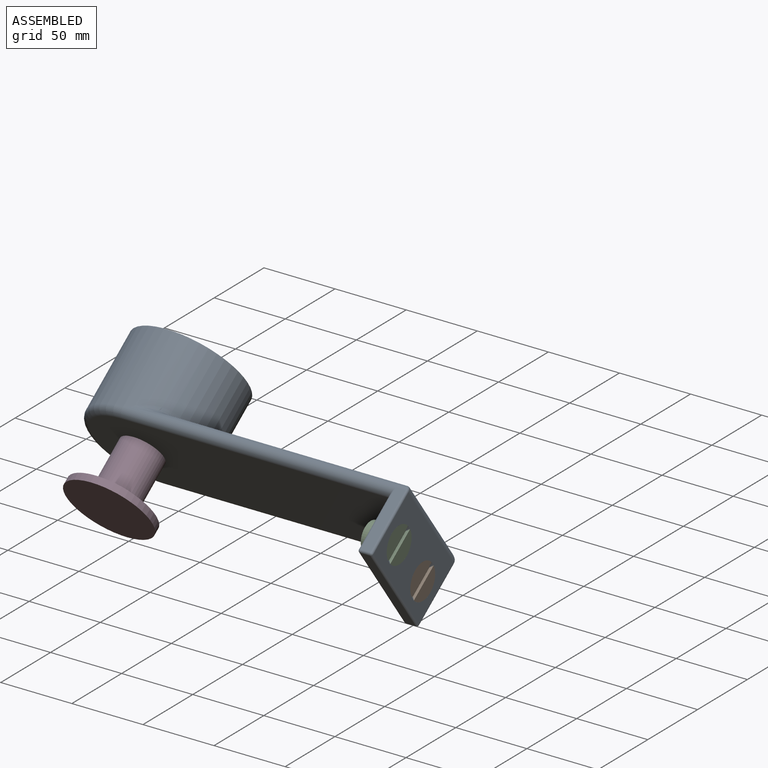
[diagram: assembled view]
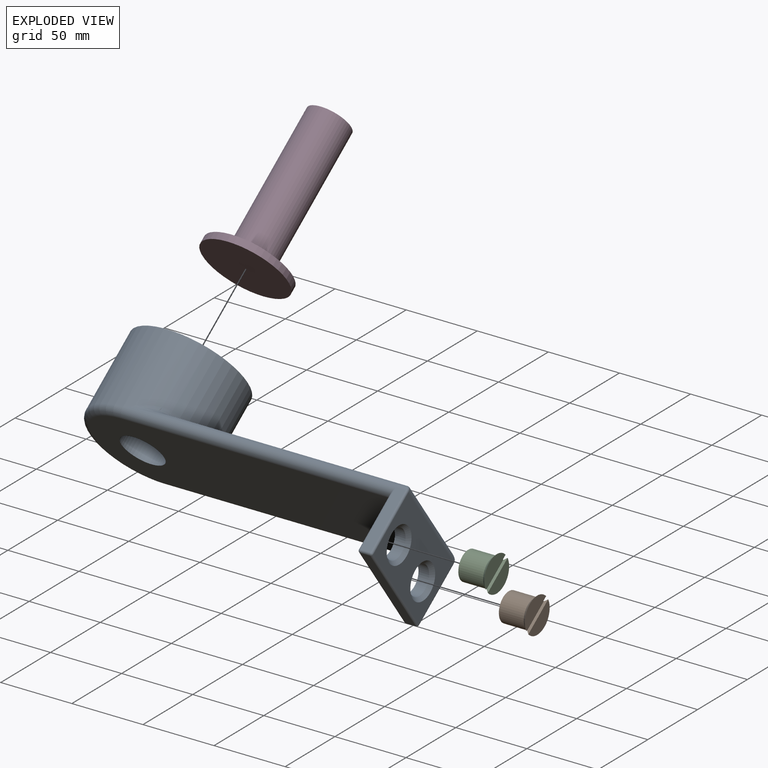
[diagram: exploded view]
GUIDED TOUR — MATED ASSEMBLY (Onshape document 11ccd8d0cca5151f88818e18, AutoMate assembly 11ccd8d0cca5151f88818e18_91a3a1b0d5d6f82dd541d160_cc35f12ad8874e34c858b3f8_default)

This assembly has 4 components, labeled P0..P3 below (a component is one placed occurrence of a part; the same part can appear more than once), held together by 3 mates. A mate is a constraint between two components; its type names the relative motion it leaves free:
  CYLINDRICAL — leaves both rotation about and translation along the listed axis free,
  FASTENED — locks the two components together rigidly (no relative motion).
Axis/direction vectors are unit vectors and 'through' points are millimeter coordinates, both in the assembly's world frame.

MATES
  1. CYLINDRICAL "Cylindrical 1": P3 <-> P0, axis (0.000, -0.805, -0.593) through (9.29, -28.96, -4.16) mm
  2. FASTENED "Fastened 1": P2 <-> P0, direction (1.000, 0.000, 0.000) through (209.29, -27.34, 21.88) mm
  3. FASTENED "Fastened 2": P1 <-> P0, direction (1.000, 0.000, 0.000) through (209.29, -3.61, -10.32) mm

ASSEMBLY ORDER
  1. P0 — the base component [order heuristic]
  2. P1 [order heuristic]
  3. P2 [order heuristic]
  4. P3 [order heuristic]
Order-tag legend:
  [order heuristic] — this assembly is geometrically interlocked (no collision-free removal order exists), so components are listed in mate-graph order; insertion feasibility is not verified.

Of the 4 components, 4 carry the full construction recipe — the FeatureScript program that regenerates the part's solid from scratch; the rest are supplied as boundary geometry only.
Each toured component is shown spotlighted twice — in the assembled view, then in the exploded view, where a leader line traces a displaced component back to its assembled socket (saturated green if recipe-attached, orange if geometry-only; every other component desaturated gray) — followed by its recipe or geometry summary and the mates that hold it.
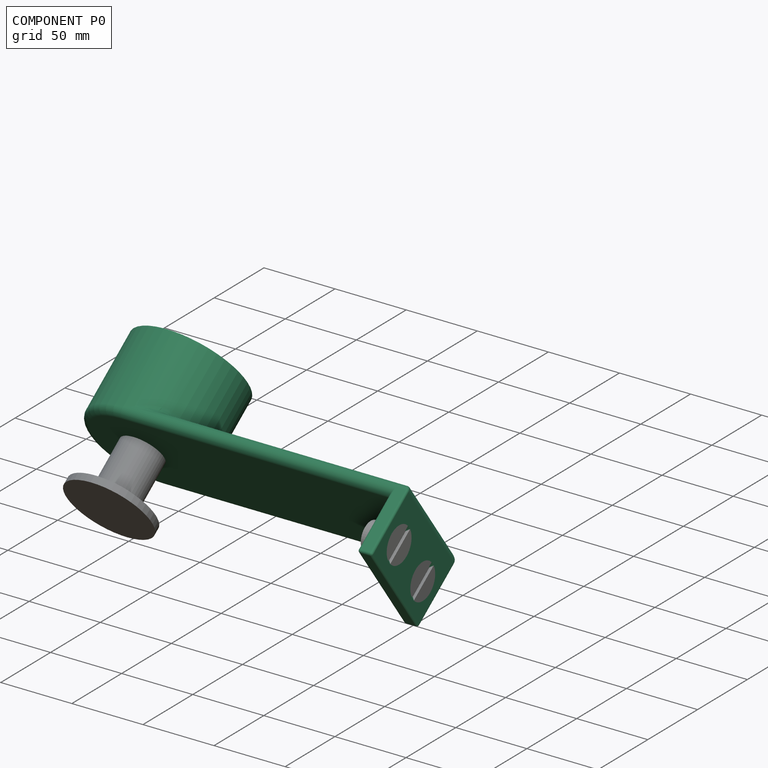
[diagram: component P0 — assembled]
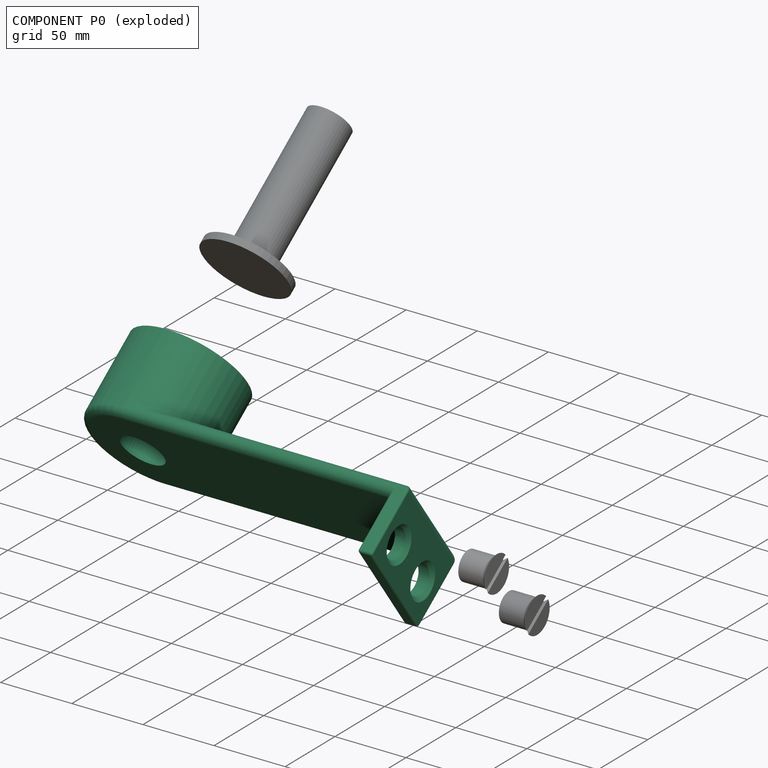
[diagram: component P0 — exploded]
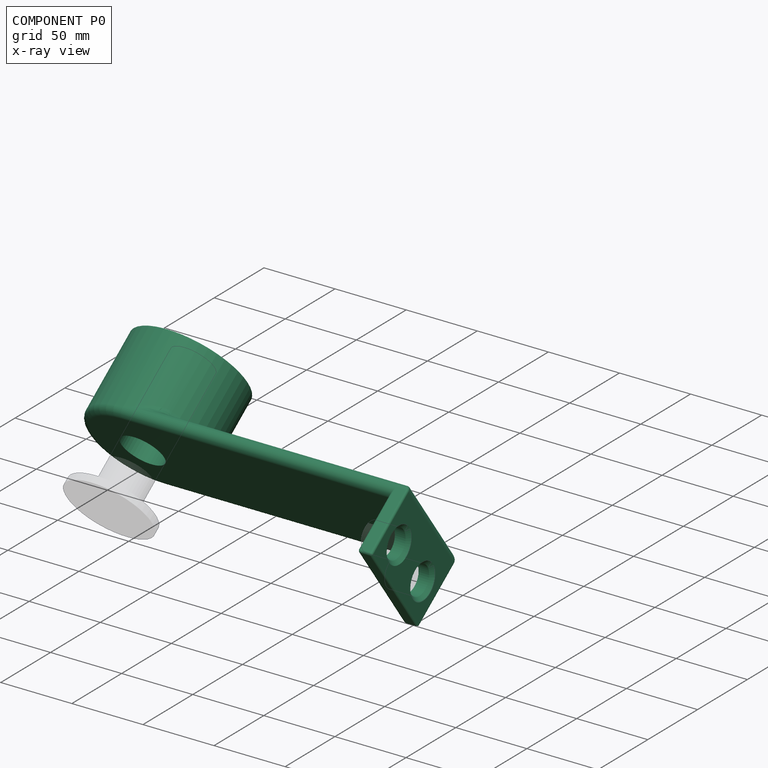
[diagram: component P0 — x-ray view]
COMPONENT P0 — recipe-attached (CADFS 00339227, mesh-verified: the recipe's output STEP matches this component's geometry to below the mesh-comparison resolution (tessellation chordal tolerance ~0.408 mm)).
Held by: CYLINDRICAL mate "Cylindrical 1" to P3; FASTENED mate "Fastened 1" to P2; FASTENED mate "Fastened 2" to P1.
Construction recipe (FeatureScript — the CAD program that rebuilds this solid; sketch coordinates are in the units given by the * unit suffixes, e.g. mm):

FeatureScript 1549;
import(path : "onshape/std/geometry.fs", version : "1549.0");
import(path : "onshape/std/common.fs", version : "1549.0");
const mm = millimeter;
const VERTEX = EntityType.VERTEX;
const EDGE = EntityType.EDGE;
const FACE = EntityType.FACE;
const BODY = EntityType.BODY;
function v(x, y){return vector(x, y);}
function OD(order){return orderDisambiguation(order);}
function OSD(set){return originalSetDisambiguation(set);}
function TD(topology){return topologyDisambiguation(topology);}
function TDD(query){return trueDependencyDisambiguation(query);}
function sQuery(a, b, c) {return sketchEntityQuery(a, b, c);}

annotation { "Feature Type Name" : "Feature", "Feature Type Description" : "" }
export const myFeature = defineFeature(function(context is Context, id is Id, definition is map)
    precondition{}
    {
        {
            var Q0;
            Q0=qCreatedBy(makeId("Top.planeOp"),FACE);
            var sketch = newSketch(context, id + "F0", { "sketchPlane" : qUnion([Q0])});
            skLineSegment(sketch, "E0.bottom", {"start": v(100, 40) * mm, "end": v(-100, 40) * mm});
            skLineSegment(sketch, "E0.top", {"start": v(100, -40) * mm, "end": v(-100, -40) * mm});
            skLineSegment(sketch, "E0.left", {"start": v(100, 40) * mm, "end": v(100, -40) * mm});
            skLineSegment(sketch, "E0.right", {"start": v(-100, 40) * mm, "end": v(-100, -40) * mm});
            skPoint(sketch, "E0.middle", {"position": v(0, 0) * mm});
            skCircle(sketch, "E1", {"center": v(-100, 0) * mm, "radius": 40 * mm});
            skCircle(sketch, "E2", {"center": v(-100, 0) * mm, "radius": 15 * mm});
            skSolve(sketch);
        }
        {
            var Q0;
            Q0=makeQuery(id+"F0.imprint","IMPRINT",FACE,{"disambiguationData":[TD([[makeQuery(id+"F0.imprint","IMPRINT",EDGE,{"derivedFrom":sQuery(id+"F0.wireOp",EDGE,"E0.bottom")}),1.0]])]});
            var Q1;
            {var subQ1=sQuery(id+"F0.wireOp",EDGE,"E0.right");var subQ3=sQuery(id+"F0.wireOp",EDGE,"E2");var subQ4=makeQuery(id+"F0.imprint","INTERSECT",VERTEX,{"disambiguationData":[OD(0.0)],"derivedFrom":[subQ1,subQ3]});Q1=makeQuery(id+"F0.imprint","IMPRINT",FACE,{"disambiguationData":[TD([[makeQuery(id+"F0.imprint","IMPRINT",EDGE,{"disambiguationData":[TD([[subQ4,1.0]])],"derivedFrom":subQ3}),-1.0]])]});}
            var Q2;
            {var subQ1=sQuery(id+"F0.wireOp",EDGE,"E0.right");var subQ3=sQuery(id+"F0.wireOp",EDGE,"E2");var subQ4=makeQuery(id+"F0.imprint","INTERSECT",VERTEX,{"disambiguationData":[OD(0.0)],"derivedFrom":[subQ1,subQ3]});Q2=makeQuery(id+"F0.imprint","IMPRINT",FACE,{"disambiguationData":[TD([[makeQuery(id+"F0.imprint","IMPRINT",EDGE,{"disambiguationData":[TD([[subQ4,-1.0]])],"derivedFrom":subQ3}),-1.0]])]});}
            extrude(context, id + "F1", {"entities" : qUnion([Q0, Q1, Q2]), "depth" : 10 * mm});
        }
        {
            var Q0;
            Q0=makeQuery(id+"F1.opExtrude","SWEPT_FACE",FACE,{"disambiguationData":[OSD([sQuery(id+"F0.wireOp",EDGE,"E0.left")])]});
            var sketch = newSketch(context, id + "F2", { "sketchPlane" : qUnion([Q0])});
            skLineSegment(sketch, "E3.bottom", {"start": v(-40, 10) * mm, "end": v(40, 10) * mm});
            skLineSegment(sketch, "E3.top", {"start": v(-40, -40) * mm, "end": v(40, -40) * mm});
            skLineSegment(sketch, "E3.left", {"start": v(-40, 10) * mm, "end": v(-40, -40) * mm});
            skLineSegment(sketch, "E3.right", {"start": v(40, 10) * mm, "end": v(40, -40) * mm});
            skCircle(sketch, "E4", {"center": v(-20, -20) * mm, "radius": 10 * mm});
            skCircle(sketch, "E5", {"center": v(20, -20) * mm, "radius": 10 * mm});
            skLineSegment(sketch, "E6", {"start": v(0, -40) * mm, "end": v(0, 10) * mm, "construction": true});
            skSolve(sketch);
        }
        {
            var Q0;
            Q0 = qSketchRegion(id + "F2", true);
            extrude(context, id + "F3", {"entities" : qUnion([Q0]), "operationType" : NewBodyOperationType.ADD, "oppositeDirection" : true, "depth" : 10 * mm});
        }
        {
            var Q0;
            {var subQ1=sQuery(id+"F0.wireOp",EDGE,"E0.right");var subQ3=sQuery(id+"F0.wireOp",EDGE,"E2");var subQ4=makeQuery(id+"F0.imprint","INTERSECT",VERTEX,{"disambiguationData":[OD(0.0)],"derivedFrom":[subQ1,subQ3]});Q0=makeQuery(id+"F0.imprint","IMPRINT",FACE,{"disambiguationData":[TD([[makeQuery(id+"F0.imprint","IMPRINT",EDGE,{"disambiguationData":[TD([[subQ4,1.0]])],"derivedFrom":subQ3}),-1.0]])]});}
            var Q1;
            {var subQ1=sQuery(id+"F0.wireOp",EDGE,"E0.right");var subQ3=sQuery(id+"F0.wireOp",EDGE,"E2");var subQ4=makeQuery(id+"F0.imprint","INTERSECT",VERTEX,{"disambiguationData":[OD(0.0)],"derivedFrom":[subQ1,subQ3]});Q1=makeQuery(id+"F0.imprint","IMPRINT",FACE,{"disambiguationData":[TD([[makeQuery(id+"F0.imprint","IMPRINT",EDGE,{"disambiguationData":[TD([[subQ4,-1.0]])],"derivedFrom":subQ3}),-1.0]])]});}
            extrude(context, id + "F4", {"entities" : qUnion([Q0, Q1]), "operationType" : NewBodyOperationType.ADD, "depth" : 60 * mm});
        }
        {
            var Q0;
            Q0=makeQuery(id+"F1.opExtrude","CAP_EDGE",EDGE,{"disambiguationData":[OSD([sQuery(id+"F0.wireOp",EDGE,"E0.left")])],"isStart":false});
            var Q1;
            {var subQ0=sQuery(id+"F0.wireOp",EDGE,"E1");Q1=makeQuery(id+"F4.boolean.opBoolean","INTERSECT",EDGE,{"derivedFrom":[makeQuery(id+"F1.opExtrude","CAP_FACE",FACE,{"disambiguationData":[OSD([sQuery(id+"F0.wireOp",EDGE,"E0.bottom"),sQuery(id+"F0.wireOp",EDGE,"E0.top"),sQuery(id+"F0.wireOp",EDGE,"E0.left"),subQ0,sQuery(id+"F0.wireOp",EDGE,"E2")])],"isStart":false}),makeQuery(id+"F4.opExtrude","SWEPT_FACE",FACE,{"disambiguationData":[OSD([subQ0])]})]});}
            var Q2;
            Q2=makeQuery(id+"F1.opExtrude","CAP_EDGE",EDGE,{"disambiguationData":[OSD([sQuery(id+"F0.wireOp",EDGE,"E0.top")])],"isStart":false});
            var Q3;
            Q3=makeQuery(id+"F1.opExtrude","CAP_EDGE",EDGE,{"disambiguationData":[OSD([sQuery(id+"F0.wireOp",EDGE,"E0.bottom")])],"isStart":false});
            var Q4;
            Q4=makeQuery(id+"F1.opExtrude","CAP_EDGE",EDGE,{"disambiguationData":[OSD([sQuery(id+"F0.wireOp",EDGE,"E0.top")])],"isStart":true});
            var Q5;
            Q5=makeQuery(id+"F1.opExtrude","CAP_EDGE",EDGE,{"disambiguationData":[OSD([sQuery(id+"F0.wireOp",EDGE,"E0.bottom")])],"isStart":true});
            fillet(context, id + "F5", {"entities" : qUnion([Q0, Q1, Q2, Q3, Q4, Q5]), "radius" : 5 * mm, "tangentPropagation" : true, "allowEdgeOverflow" : false});
        }
        {
            var Q0;
            Q0=makeQuery(id+"F3.boolean.opBoolean","MERGE",EDGE,{"derivedFrom":[makeQuery(id+"F1.opExtrude","SWEPT_EDGE",EDGE,{"disambiguationData":[OSD([sQuery(id+"F0.wireOp",EDGE,"E0.bottom"),sQuery(id+"F0.wireOp",EDGE,"E0.left")])]}),makeQuery(id+"F3.opExtrude","CAP_EDGE",EDGE,{"disambiguationData":[OSD([sQuery(id+"F2.wireOp",EDGE,"E3.right")])],"isStart":true})]});
            var Q1;
            Q1=makeQuery(id+"F3.opExtrude","CAP_EDGE",EDGE,{"disambiguationData":[OSD([sQuery(id+"F2.wireOp",EDGE,"E3.right")])],"isStart":false});
            var Q2;
            Q2=makeQuery(id+"F3.boolean.opBoolean","MERGE",EDGE,{"derivedFrom":[makeQuery(id+"F1.opExtrude","SWEPT_EDGE",EDGE,{"disambiguationData":[OSD([sQuery(id+"F0.wireOp",EDGE,"E0.top"),sQuery(id+"F0.wireOp",EDGE,"E0.left")])]}),makeQuery(id+"F3.opExtrude","CAP_EDGE",EDGE,{"disambiguationData":[OSD([sQuery(id+"F2.wireOp",EDGE,"E3.left")])],"isStart":true})]});
            var Q3;
            Q3=makeQuery(id+"F3.opExtrude","CAP_EDGE",EDGE,{"disambiguationData":[OSD([sQuery(id+"F2.wireOp",EDGE,"E3.left")])],"isStart":false});
            var Q4;
            Q4=makeQuery(id+"F3.opExtrude","CAP_EDGE",EDGE,{"disambiguationData":[OSD([sQuery(id+"F2.wireOp",EDGE,"E3.top")])],"isStart":false});
            var Q5;
            Q5=makeQuery(id+"F3.opExtrude","SWEPT_FACE",FACE,{"disambiguationData":[OSD([sQuery(id+"F2.wireOp",EDGE,"E3.top")])]});
            fillet(context, id + "F6", {"entities" : qUnion([Q0, Q1, Q2, Q3, Q4, Q5]), "radius" : 1.5 * mm, "tangentPropagation" : true, "allowEdgeOverflow" : false});
        }
        {
            var Q0;
            Q0=makeQuery(id+"F3.opExtrude","CAP_EDGE",EDGE,{"disambiguationData":[OSD([sQuery(id+"F2.wireOp",EDGE,"E4")])],"isStart":true});
            var Q1;
            Q1=makeQuery(id+"F3.opExtrude","CAP_EDGE",EDGE,{"disambiguationData":[OSD([sQuery(id+"F2.wireOp",EDGE,"E5")])],"isStart":true});
            chamfer(context, id + "F7", {"entities" : qUnion([Q0, Q1]), "chamferType" : ChamferType.OFFSET_ANGLE, "width" : 2.5 * mm, "oppositeDirection" : false, "angle" : 45 * degree, "tangentPropagation" : true});
        }
    });
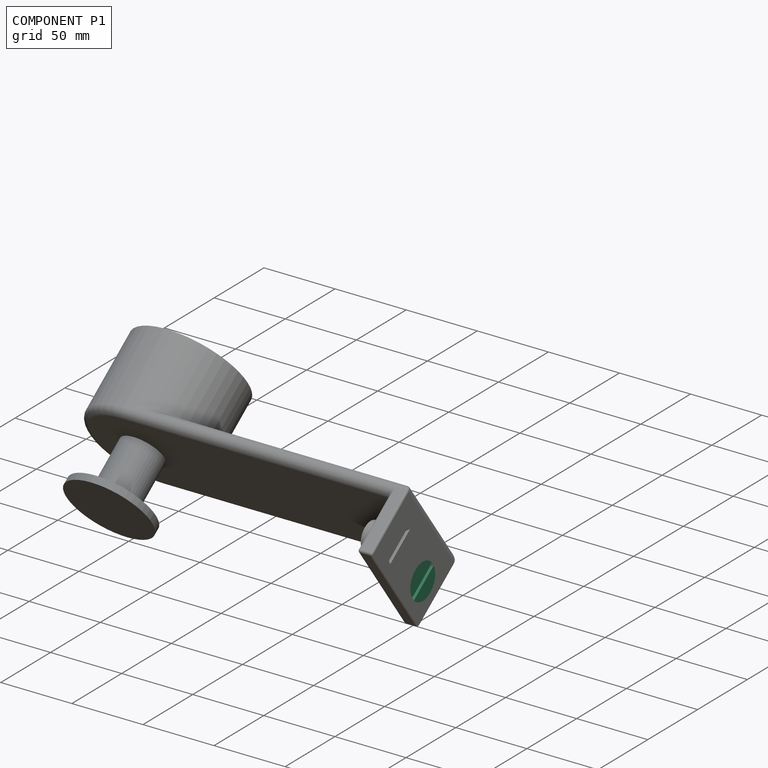
[diagram: component P1 — assembled]
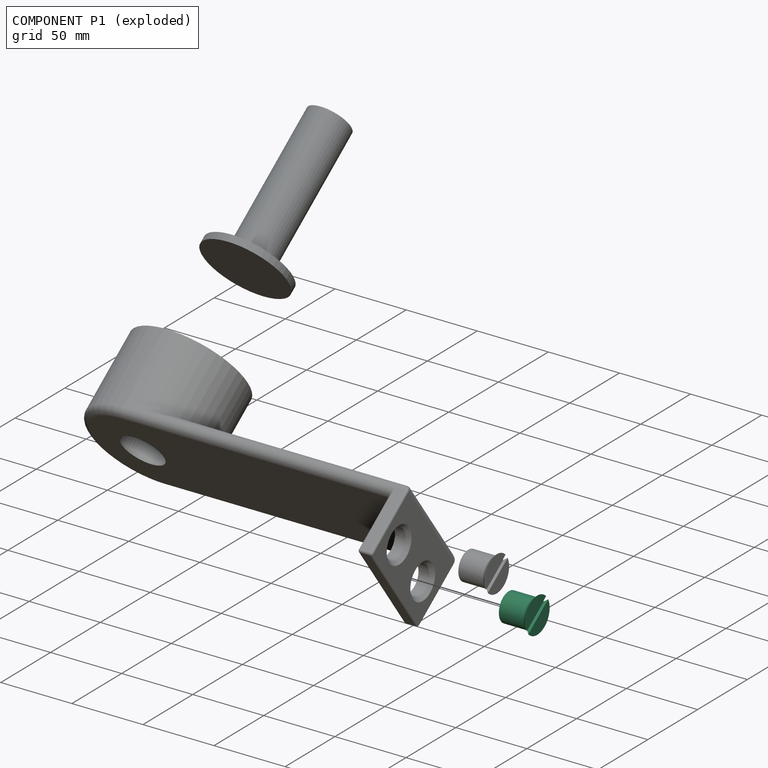
[diagram: component P1 — exploded]
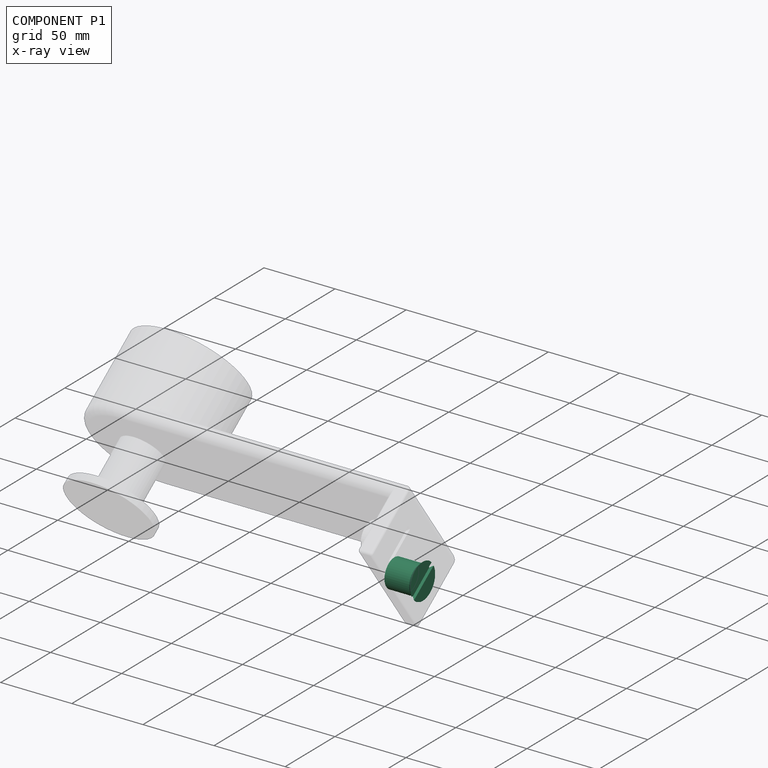
[diagram: component P1 — x-ray view]
COMPONENT P1 — recipe-attached (CADFS 00339228, mesh-verified: the recipe's output STEP matches this component's geometry to below the mesh-comparison resolution (tessellation chordal tolerance ~0.0614 mm)).
Held by: FASTENED mate "Fastened 2" to P0.
Construction recipe (FeatureScript — the CAD program that rebuilds this solid; sketch coordinates are in the units given by the * unit suffixes, e.g. mm):

FeatureScript 1549;
import(path : "onshape/std/geometry.fs", version : "1549.0");
import(path : "onshape/std/common.fs", version : "1549.0");
const mm = millimeter;
const VERTEX = EntityType.VERTEX;
const EDGE = EntityType.EDGE;
const FACE = EntityType.FACE;
const BODY = EntityType.BODY;
function v(x, y){return vector(x, y);}
function OD(order){return orderDisambiguation(order);}
function OSD(set){return originalSetDisambiguation(set);}
function TD(topology){return topologyDisambiguation(topology);}
function TDD(query){return trueDependencyDisambiguation(query);}
function sQuery(a, b, c) {return sketchEntityQuery(a, b, c);}

annotation { "Feature Type Name" : "Feature", "Feature Type Description" : "" }
export const myFeature = defineFeature(function(context is Context, id is Id, definition is map)
    precondition{}
    {
        {
            var Q0;
            Q0=qCreatedBy(makeId("Front.planeOp"),FACE);
            var sketch = newSketch(context, id + "F0", { "sketchPlane" : qUnion([Q0])});
            skLineSegment(sketch, "E0", {"start": v(0, 0) * mm, "end": v(12.5, 0) * mm});
            skLineSegment(sketch, "E1", {"start": v(12.5, 0) * mm, "end": v(10, -2.5) * mm});
            skLineSegment(sketch, "E2", {"start": v(10, -2.5) * mm, "end": v(10, -20) * mm});
            skLineSegment(sketch, "E3", {"start": v(10, -20) * mm, "end": v(8, -20) * mm});
            skLineSegment(sketch, "E4", {"start": v(8, -20) * mm, "end": v(8, -21) * mm});
            skLineSegment(sketch, "E5", {"start": v(8, -21) * mm, "end": v(0, -21) * mm});
            skLineSegment(sketch, "E6", {"start": v(0, 0) * mm, "end": v(0, -21) * mm});
            skLineSegment(sketch, "E7", {"start": v(0, 0) * mm, "end": v(0, -25.3) * mm, "construction": true});
            skSolve(sketch);
        }
        {
            var Q0;
            Q0 = qSketchRegion(id + "F0", true);
            var Q1;
            Q1=sQuery(id+"F0.wireOp",EDGE,"E7");
            revolve(context, id + "F1", {"entities" : qUnion([Q0]), "axis" : qUnion([Q1]), "revolveType" : RevolveType.FULL});
        }
        {
            var Q0;
            Q0=makeQuery(id+"F1.opRevolve","SWEPT_FACE",FACE,{"disambiguationData":[OSD([sQuery(id+"F0.wireOp",EDGE,"E0")])]});
            var sketch = newSketch(context, id + "F2", { "sketchPlane" : qUnion([Q0])});
            skLineSegment(sketch, "E8.bottom", {"start": v(16.18, 1.75) * mm, "end": v(-13.82, 1.75) * mm});
            skLineSegment(sketch, "E8.top", {"start": v(16.18, -1.75) * mm, "end": v(-13.82, -1.75) * mm});
            skLineSegment(sketch, "E8.left", {"start": v(16.18, 1.75) * mm, "end": v(16.18, -1.75) * mm});
            skLineSegment(sketch, "E8.right", {"start": v(-13.82, 1.75) * mm, "end": v(-13.82, -1.75) * mm});
            skLineSegment(sketch, "E9", {"start": v(12.5, 0) * mm, "end": v(-12.5, 0) * mm, "construction": true});
            skSolve(sketch);
        }
        {
            var Q0;
            Q0 = qSketchRegion(id + "F2", true);
            extrude(context, id + "F3", {"entities" : qUnion([Q0]), "operationType" : NewBodyOperationType.REMOVE, "oppositeDirection" : true, "depth" : 2 * mm});
        }
    });
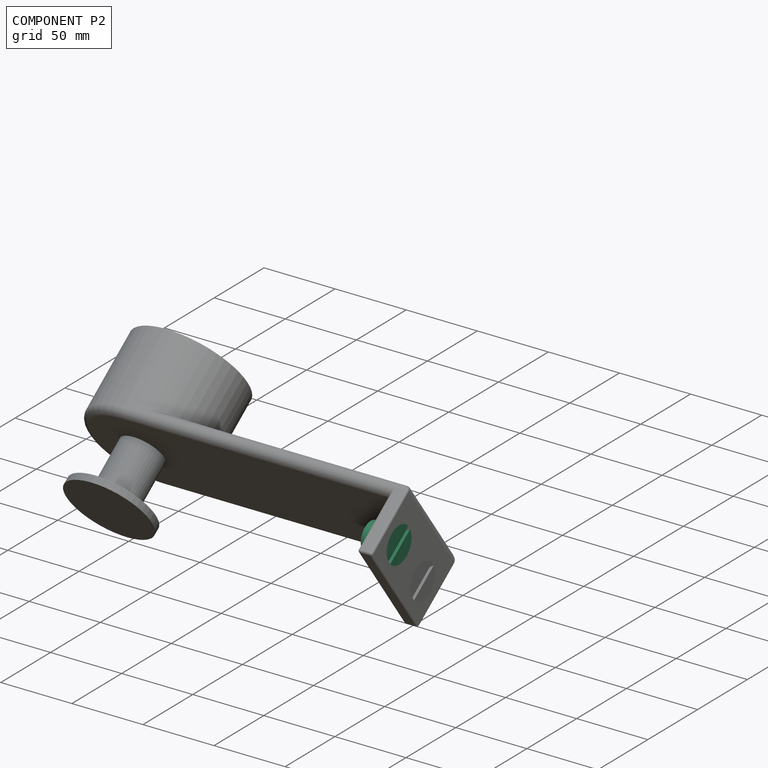
[diagram: component P2 — assembled]
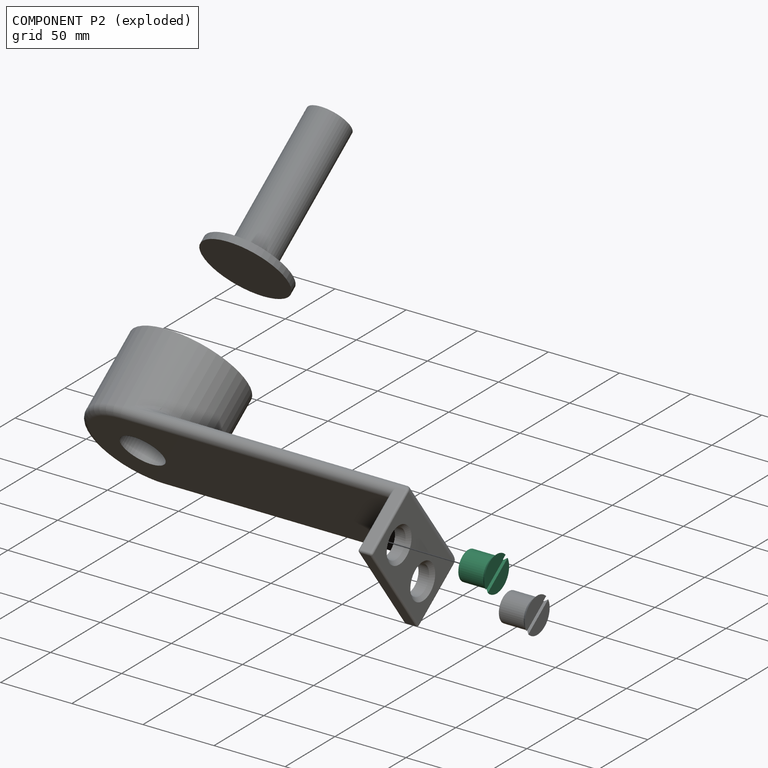
[diagram: component P2 — exploded]
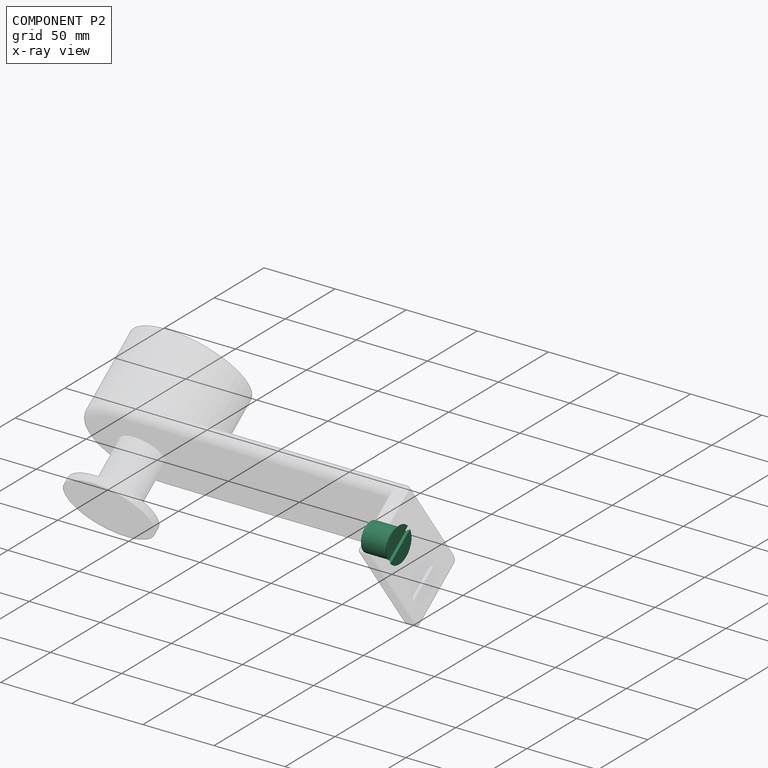
[diagram: component P2 — x-ray view]
COMPONENT P2 — same part as P1 (CADFS 00339228); its construction recipe is shown at P1.
Held by: FASTENED mate "Fastened 1" to P0.
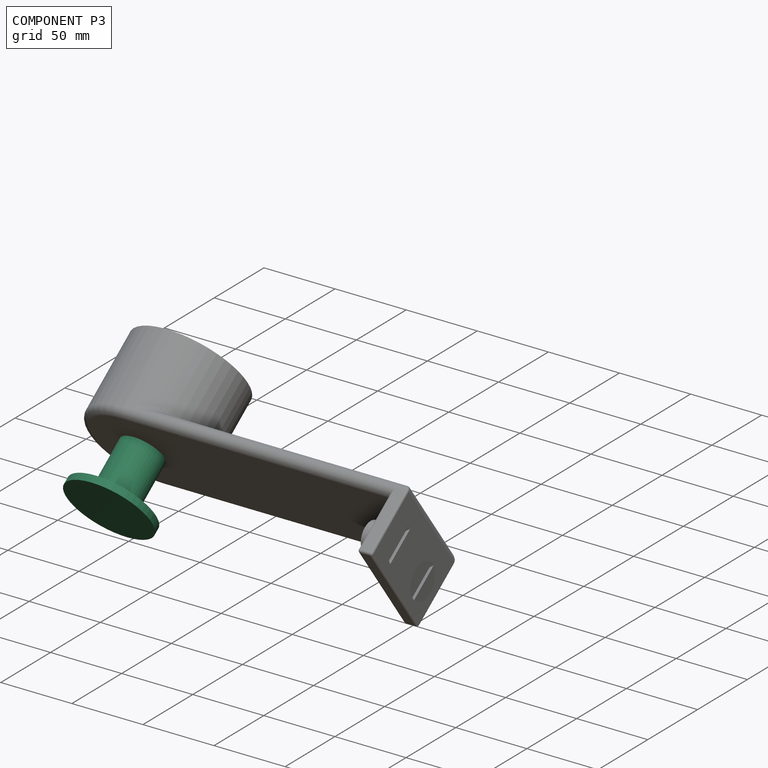
[diagram: component P3 — assembled]
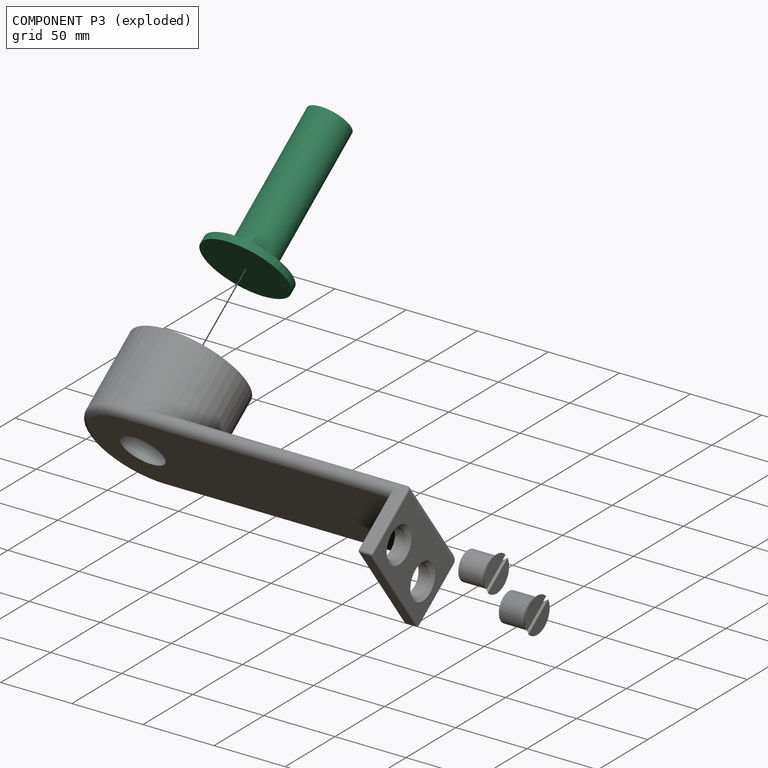
[diagram: component P3 — exploded]
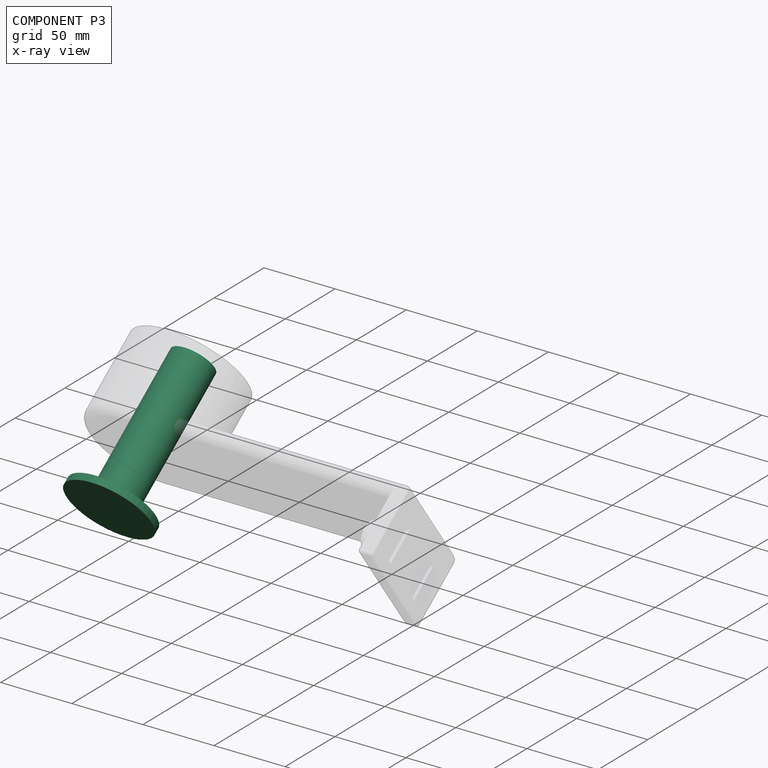
[diagram: component P3 — x-ray view]
COMPONENT P3 — recipe-attached (CADFS 00339229, mesh-verified: the recipe's output STEP matches this component's geometry to below the mesh-comparison resolution (tessellation chordal tolerance ~0.202 mm)).
Held by: CYLINDRICAL mate "Cylindrical 1" to P0.
Construction recipe (FeatureScript — the CAD program that rebuilds this solid; sketch coordinates are in the units given by the * unit suffixes, e.g. mm):

FeatureScript 1549;
import(path : "onshape/std/geometry.fs", version : "1549.0");
import(path : "onshape/std/common.fs", version : "1549.0");
const mm = millimeter;
const VERTEX = EntityType.VERTEX;
const EDGE = EntityType.EDGE;
const FACE = EntityType.FACE;
const BODY = EntityType.BODY;
function v(x, y){return vector(x, y);}
function OD(order){return orderDisambiguation(order);}
function OSD(set){return originalSetDisambiguation(set);}
function TD(topology){return topologyDisambiguation(topology);}
function TDD(query){return trueDependencyDisambiguation(query);}
function sQuery(a, b, c) {return sketchEntityQuery(a, b, c);}

annotation { "Feature Type Name" : "Feature", "Feature Type Description" : "" }
export const myFeature = defineFeature(function(context is Context, id is Id, definition is map)
    precondition{}
    {
        {
            var Q0;
            Q0=qCreatedBy(makeId("Front.planeOp"),FACE);
            var sketch = newSketch(context, id + "F0", { "sketchPlane" : qUnion([Q0])});
            skLineSegment(sketch, "E0.bottom", {"start": v(0, 0) * mm, "end": v(15, 0) * mm});
            skLineSegment(sketch, "E0.top", {"start": v(0, 100) * mm, "end": v(15, 100) * mm});
            skLineSegment(sketch, "E0.left", {"start": v(0, 0) * mm, "end": v(0, 100) * mm});
            skLineSegment(sketch, "E0.right", {"start": v(15, 0) * mm, "end": v(15, 100) * mm});
            skLineSegment(sketch, "E1.bottom", {"start": v(0, 0) * mm, "end": v(30, 0) * mm});
            skLineSegment(sketch, "E1.top", {"start": v(0, -5) * mm, "end": v(30, -5) * mm});
            skLineSegment(sketch, "E1.left", {"start": v(0, 0) * mm, "end": v(0, -5) * mm});
            skLineSegment(sketch, "E1.right", {"start": v(30, 0) * mm, "end": v(30, -5) * mm});
            skSolve(sketch);
        }
        {
            var Q0;
            Q0=makeQuery(id+"F0.imprint","IMPRINT",FACE,{"disambiguationData":[TD([[makeQuery(id+"F0.imprint","IMPRINT",EDGE,{"derivedFrom":sQuery(id+"F0.wireOp",EDGE,"E0.top")}),-1.0]])]});
            var Q1;
            Q1=makeQuery(id+"F0.imprint","IMPRINT",FACE,{"disambiguationData":[TD([[makeQuery(id+"F0.imprint","IMPRINT",EDGE,{"derivedFrom":sQuery(id+"F0.wireOp",EDGE,"E1.top")}),1.0]])]});
            var Q2;
            Q2=sQuery(id+"F0.wireOp",EDGE,"E0.left");
            revolve(context, id + "F1", {"entities" : qUnion([Q0, Q1]), "axis" : qUnion([Q2]), "revolveType" : RevolveType.FULL});
        }
        {
            var Q0;
            Q0=qCreatedBy(makeId("Right.planeOp"),FACE);
            var sketch = newSketch(context, id + "F2", { "sketchPlane" : qUnion([Q0])});
            skCircle(sketch, "E2", {"center": v(0, 95) * mm, "radius": 1.5 * mm});
            skLineSegment(sketch, "E3", {"start": v(0, 0) * mm, "end": v(0, 110.49) * mm, "construction": true});
            skSolve(sketch);
        }
        {
            var Q0;
            Q0 = qSketchRegion(id + "F2", true);
            extrude(context, id + "F3", {"entities" : qUnion([Q0]), "operationType" : NewBodyOperationType.REMOVE, "oppositeDirection" : true, "depth" : 25 * mm, "hasSecondDirection" : true, "secondDirectionOppositeDirection" : false, "secondDirectionDepth" : 25 * mm});
        }
    });
PROVENANCE & LICENSES
Assembly (occurrences, transforms, mates, per-part STEP geometry): AutoMate dataset, Zenodo record 7776208, CC0.
Construction recipes: CADFS (HuggingFace VladPyatov/CADFS, CC-BY-4.0, layered over the ABC dataset), FeatureScript reconstruction programs keyed by ABC model id.
Join: ABC meta listings map ABC model id -> Onshape documentId; within a shared document, parts are matched by geometric signature (bounding-box dims + volume at 0.1% relative tolerance, exact B-rep face/solid counts).
Verification: 4 of this assembly's 4 components carry a recipe attachment, and every attachment is mesh-verified: the CADFS STEP and the AutoMate member STEP were compared as meshes in their shared local frame (symmetric sampled-point-to-mesh distance); worst across the 4 attachments: below the mesh-comparison resolution (tessellation chordal tolerance ~0.408 mm) on a 272 mm part.
Renders: orthographic iso camera (az 35 / el 25); the floor grid conveys scale (grid pitch printed in each image; no ruler). In the exploded view each component is displaced by its stored offset vector: the offsets alone carry the explosion direction (mate normal/axis signs are not orientation cues and do not encode it), and separation distances are assigned per mate-chain, not proportionally to assembly-order depth.
